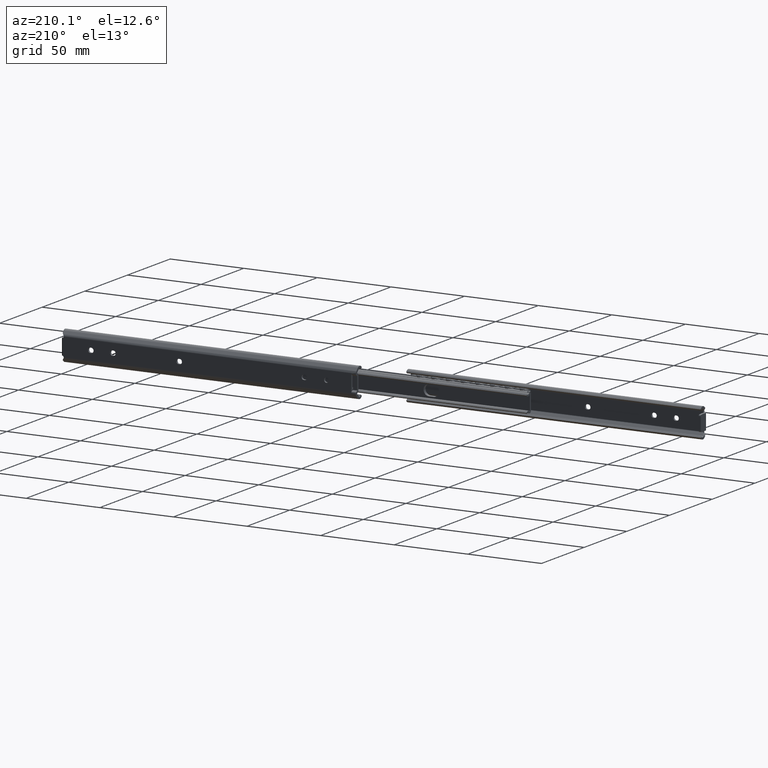
[diagram: clean part render]
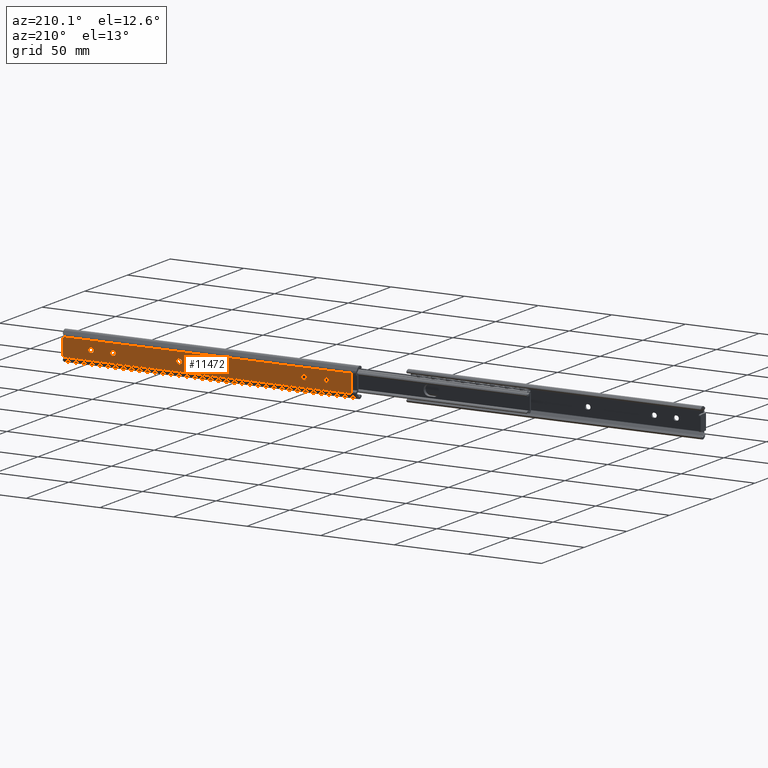
[diagram: same view with one face highlighted and labeled with its STEP entity id]
A machine part, auxiliary view. The second image highlights one B-rep face of the part: STEP entity #11472.
In plain terms, the highlighted face is a freeform B-spline surface patch.
Its self-contained STEP definition (entity closure, byte-faithful):
#8533=CARTESIAN_POINT('',(21.597015677321561,4.857226E-017,-0.097677665764265));
#8534=VERTEX_POINT('',#8533);
#8540=CARTESIAN_POINT('',(20.0,0.0,-1.600000000000000));
#8541=VERTEX_POINT('',#8540);
#8542=CARTESIAN_POINT('',(20.0,0.0,-1.600000000000000));
#8543=CARTESIAN_POINT('',(21.505129702311947,0.0,-1.600000000000001));
#8544=CARTESIAN_POINT('',(21.597015677321558,4.857226E-017,-0.097677665764265));
#8552=(BOUNDED_CURVE()B_SPLINE_CURVE(2,(#8542,#8543,#8544),.UNSPECIFIED.,.F.,.U.)B_SPLINE_CURVE_WITH_KNOTS((3,3),(0.500000000000000,0.739332961699916),.UNSPECIFIED.)CURVE()GEOMETRIC_REPRESENTATION_ITEM()RATIONAL_B_SPLINE_CURVE((1.0,0.719603993918219,0.976072040511481))REPRESENTATION_ITEM(''));
#8553=EDGE_CURVE('',#8541,#8534,#8552,.T.);
#8555=CARTESIAN_POINT('',(18.411184758233269,4.614071E-017,0.188854778943284));
#8556=VERTEX_POINT('',#8555);
#8557=CARTESIAN_POINT('',(18.411184758233265,4.614071E-017,0.188854778943284));
#8558=CARTESIAN_POINT('',(18.399999999999991,0.0,0.094758594972449));
#8559=CARTESIAN_POINT('',(18.399999999999999,0.0,0.0));
#8560=CARTESIAN_POINT('',(18.399999999999991,0.0,-1.600000000000000));
#8561=CARTESIAN_POINT('',(20.0,0.0,-1.600000000000000));
#8569=(BOUNDED_CURVE()B_SPLINE_CURVE(2,(#8557,#8558,#8559,#8560,#8561),.UNSPECIFIED.,.F.,.U.)B_SPLINE_CURVE_WITH_KNOTS((3,2,3),(0.229562472772652,0.250000000000000,0.500000000000000),.UNSPECIFIED.)CURVE()GEOMETRIC_REPRESENTATION_ITEM()RATIONAL_B_SPLINE_CURVE((0.956026752731590,0.976055947463178,1.0,0.707106781186548,1.0))REPRESENTATION_ITEM(''));
#8570=EDGE_CURVE('',#8556,#8541,#8569,.T.);
#8614=CARTESIAN_POINT('',(20.0,0.0,1.600000000000000));
#8615=VERTEX_POINT('',#8614);
#8616=CARTESIAN_POINT('',(20.0,0.0,1.600000000000000));
#8617=CARTESIAN_POINT('',(18.578920764769308,0.0,1.600000000000000));
#8618=CARTESIAN_POINT('',(18.411184758233272,4.614071E-017,0.188854778943284));
#8626=(BOUNDED_CURVE()B_SPLINE_CURVE(2,(#8616,#8617,#8618),.UNSPECIFIED.,.F.,.U.)B_SPLINE_CURVE_WITH_KNOTS((3,3),(0.0,0.229562472772652),.UNSPECIFIED.)CURVE()GEOMETRIC_REPRESENTATION_ITEM()RATIONAL_B_SPLINE_CURVE((1.0,0.731050833723370,0.956026752731590))REPRESENTATION_ITEM(''));
#8627=EDGE_CURVE('',#8615,#8556,#8626,.T.);
#8629=CARTESIAN_POINT('',(21.597015677321558,4.857226E-017,-0.097677665764265));
#8630=CARTESIAN_POINT('',(21.600000000000001,0.0,-0.048884423793270));
#8631=CARTESIAN_POINT('',(21.600000000000001,0.0,0.0));
#8632=CARTESIAN_POINT('',(21.600000000000005,0.0,1.600000000000000));
#8633=CARTESIAN_POINT('',(20.0,0.0,1.600000000000000));
#8641=(BOUNDED_CURVE()B_SPLINE_CURVE(2,(#8629,#8630,#8631,#8632,#8633),.UNSPECIFIED.,.F.,.U.)B_SPLINE_CURVE_WITH_KNOTS((3,2,3),(0.739332961699916,0.750000000000000,1.0),.UNSPECIFIED.)CURVE()GEOMETRIC_REPRESENTATION_ITEM()RATIONAL_B_SPLINE_CURVE((0.976072040511482,0.987502787268329,1.0,0.707106781186548,1.0))REPRESENTATION_ITEM(''));
#8642=EDGE_CURVE('',#8534,#8615,#8641,.T.);
#8677=CARTESIAN_POINT('',(35.299999999999997,8.526513E-014,-1.600000000000080));
#8678=VERTEX_POINT('',#8677);
#8684=CARTESIAN_POINT('',(34.700000000000003,0.0,-1.600000000000000));
#8685=VERTEX_POINT('',#8684);
#8686=CARTESIAN_POINT('',(34.700000000000003,0.0,-1.600000000000000));
#8687=CARTESIAN_POINT('',(35.299999999999997,8.526513E-014,-1.600000000000080));
#8688=QUASI_UNIFORM_CURVE('',1,(#8686,#8687),.UNSPECIFIED.,.F.,.U.);
#8689=EDGE_CURVE('',#8685,#8678,#8688,.T.);
#8735=CARTESIAN_POINT('',(34.700000000000003,0.0,1.600000000000025));
#8736=VERTEX_POINT('',#8735);
#8737=CARTESIAN_POINT('',(34.700000000000003,0.0,1.600000000000000));
#8738=CARTESIAN_POINT('',(33.100000000000009,0.0,1.600000000000000));
#8739=CARTESIAN_POINT('',(33.100000000000001,0.0,0.0));
#8740=CARTESIAN_POINT('',(33.100000000000009,0.0,-1.600000000000000));
#8741=CARTESIAN_POINT('',(34.700000000000003,0.0,-1.600000000000000));
#8749=(BOUNDED_CURVE()B_SPLINE_CURVE(2,(#8737,#8738,#8739,#8740,#8741),.UNSPECIFIED.,.F.,.U.)B_SPLINE_CURVE_WITH_KNOTS((3,2,3),(0.0,0.500000000000000,1.0),.UNSPECIFIED.)CURVE()GEOMETRIC_REPRESENTATION_ITEM()RATIONAL_B_SPLINE_CURVE((1.0,0.707106781186548,1.0,0.707106781186548,1.0))REPRESENTATION_ITEM(''));
#8750=EDGE_CURVE('',#8736,#8685,#8749,.T.);
#8773=CARTESIAN_POINT('',(35.299999999999997,0.0,1.600000000000025));
#8774=VERTEX_POINT('',#8773);
#8775=CARTESIAN_POINT('',(35.299999999999997,0.0,1.600000000000025));
#8776=CARTESIAN_POINT('',(34.700000000000003,0.0,1.600000000000025));
#8777=QUASI_UNIFORM_CURVE('',1,(#8775,#8776),.UNSPECIFIED.,.F.,.U.);
#8778=EDGE_CURVE('',#8774,#8736,#8777,.T.);
#8822=CARTESIAN_POINT('',(35.299999999999997,8.526513E-014,-1.600000000000080));
#8823=CARTESIAN_POINT('',(36.900000000000006,0.0,-1.600000000000000));
#8824=CARTESIAN_POINT('',(36.899999999999999,0.0,0.0));
#8825=CARTESIAN_POINT('',(36.900000000000006,0.0,1.600000000000000));
#8826=CARTESIAN_POINT('',(35.299999999999997,0.0,1.600000000000000));
#8834=(BOUNDED_CURVE()B_SPLINE_CURVE(2,(#8822,#8823,#8824,#8825,#8826),.UNSPECIFIED.,.F.,.U.)B_SPLINE_CURVE_WITH_KNOTS((3,2,3),(0.0,0.500000000000000,1.0),.UNSPECIFIED.)CURVE()GEOMETRIC_REPRESENTATION_ITEM()RATIONAL_B_SPLINE_CURVE((1.0,0.707106781186548,1.0,0.707106781186548,1.0))REPRESENTATION_ITEM(''));
#8835=EDGE_CURVE('',#8678,#8774,#8834,.T.);
#8878=CARTESIAN_POINT('',(120.300000000000000,1.110223E-013,1.600000000000000));
#8879=VERTEX_POINT('',#8878);
#8885=CARTESIAN_POINT('',(120.300000000000000,0.0,-1.600000000000000));
#8886=VERTEX_POINT('',#8885);
#8887=CARTESIAN_POINT('',(120.300000000000000,0.0,-1.600000000000000));
#8888=CARTESIAN_POINT('',(121.900000000000010,0.0,-1.600000000000000));
#8889=CARTESIAN_POINT('',(121.900000000000010,0.0,0.0));
#8890=CARTESIAN_POINT('',(121.900000000000010,0.0,1.600000000000000));
#8891=CARTESIAN_POINT('',(120.300000000000000,0.0,1.600000000000000));
#8899=(BOUNDED_CURVE()B_SPLINE_CURVE(2,(#8887,#8888,#8889,#8890,#8891),.UNSPECIFIED.,.F.,.U.)B_SPLINE_CURVE_WITH_KNOTS((3,2,3),(0.0,0.500000000000000,1.0),.UNSPECIFIED.)CURVE()GEOMETRIC_REPRESENTATION_ITEM()RATIONAL_B_SPLINE_CURVE((1.0,0.707106781186548,1.0,0.707106781186548,1.0))REPRESENTATION_ITEM(''));
#8900=EDGE_CURVE('',#8886,#8879,#8899,.T.);
#8923=CARTESIAN_POINT('',(119.700000000000000,0.0,-1.600000000000000));
#8924=VERTEX_POINT('',#8923);
#8925=CARTESIAN_POINT('',(119.700000000000000,0.0,-1.600000000000000));
#8926=CARTESIAN_POINT('',(120.300000000000000,0.0,-1.600000000000000));
#8927=QUASI_UNIFORM_CURVE('',1,(#8925,#8926),.UNSPECIFIED.,.F.,.U.);
#8928=EDGE_CURVE('',#8924,#8886,#8927,.T.);
#8974=CARTESIAN_POINT('',(119.700000000000000,0.0,1.600000000000000));
#8975=VERTEX_POINT('',#8974);
#8976=CARTESIAN_POINT('',(119.700000000000000,0.0,1.600000000000000));
#8977=CARTESIAN_POINT('',(118.099999999999980,0.0,1.600000000000000));
#8978=CARTESIAN_POINT('',(118.099999999999990,0.0,0.0));
#8979=CARTESIAN_POINT('',(118.099999999999980,0.0,-1.600000000000000));
#8980=CARTESIAN_POINT('',(119.700000000000000,0.0,-1.600000000000000));
#8988=(BOUNDED_CURVE()B_SPLINE_CURVE(2,(#8976,#8977,#8978,#8979,#8980),.UNSPECIFIED.,.F.,.U.)B_SPLINE_CURVE_WITH_KNOTS((3,2,3),(0.0,0.500000000000000,1.0),.UNSPECIFIED.)CURVE()GEOMETRIC_REPRESENTATION_ITEM()RATIONAL_B_SPLINE_CURVE((1.0,0.707106781186548,1.0,0.707106781186548,1.0))REPRESENTATION_ITEM(''));
#8989=EDGE_CURVE('',#8975,#8924,#8988,.T.);
#9010=CARTESIAN_POINT('',(120.300000000000000,1.110223E-013,1.600000000000000));
#9011=CARTESIAN_POINT('',(119.700000000000000,0.0,1.600000000000000));
#9012=QUASI_UNIFORM_CURVE('',1,(#9010,#9011),.UNSPECIFIED.,.F.,.U.);
#9013=EDGE_CURVE('',#8879,#8975,#9012,.T.);
#9033=CARTESIAN_POINT('',(165.300000000000010,8.526513E-014,-1.600000000000000));
#9034=VERTEX_POINT('',#9033);
#9040=CARTESIAN_POINT('',(164.699999999999990,0.0,-1.600000000000000));
#9041=VERTEX_POINT('',#9040);
#9042=CARTESIAN_POINT('',(164.699999999999990,0.0,-1.600000000000000));
#9043=CARTESIAN_POINT('',(165.300000000000010,8.526513E-014,-1.600000000000000));
#9044=QUASI_UNIFORM_CURVE('',1,(#9042,#9043),.UNSPECIFIED.,.F.,.U.);
#9045=EDGE_CURVE('',#9041,#9034,#9044,.T.);
#9091=CARTESIAN_POINT('',(164.699999999999990,0.0,1.599999999999910));
#9092=VERTEX_POINT('',#9091);
#9093=CARTESIAN_POINT('',(164.699999999999990,0.0,1.600000000000000));
#9094=CARTESIAN_POINT('',(163.099999999999990,0.0,1.600000000000000));
#9095=CARTESIAN_POINT('',(163.099999999999990,0.0,0.0));
#9096=CARTESIAN_POINT('',(163.099999999999990,0.0,-1.600000000000000));
#9097=CARTESIAN_POINT('',(164.699999999999990,0.0,-1.600000000000000));
#9105=(BOUNDED_CURVE()B_SPLINE_CURVE(2,(#9093,#9094,#9095,#9096,#9097),.UNSPECIFIED.,.F.,.U.)B_SPLINE_CURVE_WITH_KNOTS((3,2,3),(0.0,0.500000000000000,1.0),.UNSPECIFIED.)CURVE()GEOMETRIC_REPRESENTATION_ITEM()RATIONAL_B_SPLINE_CURVE((1.0,0.707106781186548,1.0,0.707106781186548,1.0))REPRESENTATION_ITEM(''));
#9106=EDGE_CURVE('',#9092,#9041,#9105,.T.);
#9129=CARTESIAN_POINT('',(165.300000000000010,0.0,1.599999999999910));
#9130=VERTEX_POINT('',#9129);
#9131=CARTESIAN_POINT('',(165.300000000000010,0.0,1.599999999999910));
#9132=CARTESIAN_POINT('',(164.699999999999990,0.0,1.599999999999910));
#9133=QUASI_UNIFORM_CURVE('',1,(#9131,#9132),.UNSPECIFIED.,.F.,.U.);
#9134=EDGE_CURVE('',#9130,#9092,#9133,.T.);
#9178=CARTESIAN_POINT('',(165.300000000000010,0.0,-1.600000000000000));
#9179=CARTESIAN_POINT('',(166.900000000000010,0.0,-1.600000000000000));
#9180=CARTESIAN_POINT('',(166.900000000000010,0.0,0.0));
#9181=CARTESIAN_POINT('',(166.900000000000010,0.0,1.600000000000000));
#9182=CARTESIAN_POINT('',(165.300000000000010,0.0,1.600000000000000));
#9190=(BOUNDED_CURVE()B_SPLINE_CURVE(2,(#9178,#9179,#9180,#9181,#9182),.UNSPECIFIED.,.F.,.U.)B_SPLINE_CURVE_WITH_KNOTS((3,2,3),(0.0,0.500000000000000,1.0),.UNSPECIFIED.)CURVE()GEOMETRIC_REPRESENTATION_ITEM()RATIONAL_B_SPLINE_CURVE((1.0,0.707106781186548,1.0,0.707106781186548,1.0))REPRESENTATION_ITEM(''));
#9191=EDGE_CURVE('',#9034,#9130,#9190,.T.);
#9211=CARTESIAN_POINT('',(180.300000000000010,8.526513E-014,-1.600000000000000));
#9212=VERTEX_POINT('',#9211);
#9218=CARTESIAN_POINT('',(179.699999999999990,0.0,-1.600000000000000));
#9219=VERTEX_POINT('',#9218);
#9220=CARTESIAN_POINT('',(179.699999999999990,0.0,-1.600000000000000));
#9221=CARTESIAN_POINT('',(180.300000000000010,8.526513E-014,-1.600000000000000));
#9222=QUASI_UNIFORM_CURVE('',1,(#9220,#9221),.UNSPECIFIED.,.F.,.U.);
#9223=EDGE_CURVE('',#9219,#9212,#9222,.T.);
#9269=CARTESIAN_POINT('',(179.699999999999990,0.0,1.599999999999910));
#9270=VERTEX_POINT('',#9269);
#9271=CARTESIAN_POINT('',(179.699999999999990,0.0,1.600000000000000));
#9272=CARTESIAN_POINT('',(178.099999999999970,0.0,1.600000000000000));
#9273=CARTESIAN_POINT('',(178.099999999999990,0.0,0.0));
#9274=CARTESIAN_POINT('',(178.099999999999970,0.0,-1.600000000000000));
#9275=CARTESIAN_POINT('',(179.699999999999990,0.0,-1.600000000000000));
#9283=(BOUNDED_CURVE()B_SPLINE_CURVE(2,(#9271,#9272,#9273,#9274,#9275),.UNSPECIFIED.,.F.,.U.)B_SPLINE_CURVE_WITH_KNOTS((3,2,3),(0.0,0.500000000000000,1.0),.UNSPECIFIED.)CURVE()GEOMETRIC_REPRESENTATION_ITEM()RATIONAL_B_SPLINE_CURVE((1.0,0.707106781186548,1.0,0.707106781186548,1.0))REPRESENTATION_ITEM(''));
#9284=EDGE_CURVE('',#9270,#9219,#9283,.T.);
#9307=CARTESIAN_POINT('',(180.300000000000010,0.0,1.599999999999910));
#9308=VERTEX_POINT('',#9307);
#9309=CARTESIAN_POINT('',(180.300000000000010,0.0,1.599999999999910));
#9310=CARTESIAN_POINT('',(179.699999999999990,0.0,1.599999999999910));
#9311=QUASI_UNIFORM_CURVE('',1,(#9309,#9310),.UNSPECIFIED.,.F.,.U.);
#9312=EDGE_CURVE('',#9308,#9270,#9311,.T.);
#9356=CARTESIAN_POINT('',(180.300000000000010,0.0,-1.600000000000000));
#9357=CARTESIAN_POINT('',(181.899999999999980,0.0,-1.600000000000000));
#9358=CARTESIAN_POINT('',(181.900000000000010,0.0,0.0));
#9359=CARTESIAN_POINT('',(181.899999999999980,0.0,1.600000000000000));
#9360=CARTESIAN_POINT('',(180.300000000000010,0.0,1.600000000000000));
#9368=(BOUNDED_CURVE()B_SPLINE_CURVE(2,(#9356,#9357,#9358,#9359,#9360),.UNSPECIFIED.,.F.,.U.)B_SPLINE_CURVE_WITH_KNOTS((3,2,3),(0.0,0.500000000000000,1.0),.UNSPECIFIED.)CURVE()GEOMETRIC_REPRESENTATION_ITEM()RATIONAL_B_SPLINE_CURVE((1.0,0.707106781186548,1.0,0.707106781186548,1.0))REPRESENTATION_ITEM(''));
#9369=EDGE_CURVE('',#9212,#9308,#9368,.T.);
#9428=CARTESIAN_POINT('',(199.0,0.0,-5.383484861008840));
#9429=VERTEX_POINT('',#9428);
#9441=CARTESIAN_POINT('',(199.0,0.0,5.383484861008751));
#9442=VERTEX_POINT('',#9441);
#9443=CARTESIAN_POINT('',(199.0,0.0,5.383484861008751));
#9444=CARTESIAN_POINT('',(199.0,0.0,-5.383484861008840));
#9445=QUASI_UNIFORM_CURVE('',1,(#9443,#9444),.UNSPECIFIED.,.F.,.U.);
#9446=EDGE_CURVE('',#9442,#9429,#9445,.T.);
#9852=CARTESIAN_POINT('',(198.424053688014000,0.0,6.081989000000000));
#9853=VERTEX_POINT('',#9852);
#9854=CARTESIAN_POINT('',(198.424053688014000,0.0,6.081989000000002));
#9855=CARTESIAN_POINT('',(198.534727763389700,0.0,5.586546312725764));
#9856=CARTESIAN_POINT('',(199.0,0.0,5.383484861008813));
#9864=(BOUNDED_CURVE()B_SPLINE_CURVE(2,(#9854,#9855,#9856),.UNSPECIFIED.,.F.,.U.)CURVE()GEOMETRIC_REPRESENTATION_ITEM()QUASI_UNIFORM_CURVE()RATIONAL_B_SPLINE_CURVE((1.0,0.891680690258836,1.0))REPRESENTATION_ITEM(''));
#9865=EDGE_CURVE('',#9853,#9442,#9864,.T.);
#10066=CARTESIAN_POINT('',(198.424053688014000,0.0,-6.081989000000000));
#10067=VERTEX_POINT('',#10066);
#10068=CARTESIAN_POINT('',(199.0,0.0,-5.383484861008911));
#10069=CARTESIAN_POINT('',(198.534727763389780,0.0,-5.586546312725836));
#10070=CARTESIAN_POINT('',(198.424053688014110,0.0,-6.081989000000006));
#10078=(BOUNDED_CURVE()B_SPLINE_CURVE(2,(#10068,#10069,#10070),.UNSPECIFIED.,.F.,.U.)CURVE()GEOMETRIC_REPRESENTATION_ITEM()QUASI_UNIFORM_CURVE()RATIONAL_B_SPLINE_CURVE((1.0,0.891680690258857,1.0))REPRESENTATION_ITEM(''));
#10079=EDGE_CURVE('',#9429,#10067,#10078,.T.);
#11391=CARTESIAN_POINT('',(3.100000000000000,7.958044E-014,-6.081989000000000));
#11392=VERTEX_POINT('',#11391);
#11393=CARTESIAN_POINT('',(198.424053688014000,0.0,-6.081989000000000));
#11394=CARTESIAN_POINT('',(3.100000000000000,7.958044E-014,-6.081989000000000));
#11395=QUASI_UNIFORM_CURVE('',1,(#11393,#11394),.UNSPECIFIED.,.F.,.U.);
#11396=EDGE_CURVE('',#10067,#11392,#11395,.T.);
#11419=CARTESIAN_POINT('',(-6.685204620307786,8.526513E-014,-6.689579519878855));
#11420=CARTESIAN_POINT('',(-6.685204620307786,8.526513E-014,6.689579084861101));
#11421=CARTESIAN_POINT('',(208.785209874755310,8.526513E-014,-6.689579519878854));
#11422=CARTESIAN_POINT('',(208.785209874755310,8.526513E-014,6.689579084861101));
#11423=B_SPLINE_SURFACE_WITH_KNOTS('',1,1,((#11419,#11421),(#11420,#11422)),.UNSPECIFIED.,.F.,.F.,.U.,(2,2),(2,2),(0.0,13.379158604739960),(0.0,215.470414495063100),.UNSPECIFIED.);
#11424=ORIENTED_EDGE('',*,*,#9865,.T.);
#11425=ORIENTED_EDGE('',*,*,#9446,.T.);
#11426=ORIENTED_EDGE('',*,*,#10079,.T.);
#11427=ORIENTED_EDGE('',*,*,#11396,.T.);
#11428=CARTESIAN_POINT('',(3.100000000000000,-9.063930E-014,6.081989000000000));
#11429=VERTEX_POINT('',#11428);
#11430=CARTESIAN_POINT('',(3.100000000000000,7.958044E-014,-6.081989000000000));
#11431=CARTESIAN_POINT('',(3.100000000000000,-9.063930E-014,6.081989000000000));
#11432=QUASI_UNIFORM_CURVE('',1,(#11430,#11431),.UNSPECIFIED.,.F.,.U.);
#11433=EDGE_CURVE('',#11392,#11429,#11432,.T.);
#11434=ORIENTED_EDGE('',*,*,#11433,.T.);
#11435=CARTESIAN_POINT('',(198.424053688014000,0.0,6.081989000000000));
#11436=CARTESIAN_POINT('',(3.100000000000000,-9.063930E-014,6.081989000000000));
#11437=QUASI_UNIFORM_CURVE('',1,(#11435,#11436),.UNSPECIFIED.,.F.,.U.);
#11438=EDGE_CURVE('',#9853,#11429,#11437,.T.);
#11439=ORIENTED_EDGE('',*,*,#11438,.F.);
#11440=EDGE_LOOP('',(#11424,#11425,#11426,#11427,#11434,#11439));
#11441=FACE_OUTER_BOUND('',#11440,.T.);
#11442=ORIENTED_EDGE('',*,*,#8835,.T.);
#11443=ORIENTED_EDGE('',*,*,#8778,.T.);
#11444=ORIENTED_EDGE('',*,*,#8750,.T.);
#11445=ORIENTED_EDGE('',*,*,#8689,.T.);
#11446=EDGE_LOOP('',(#11442,#11443,#11444,#11445));
#11447=FACE_BOUND('',#11446,.T.);
#11448=ORIENTED_EDGE('',*,*,#9013,.T.);
#11449=ORIENTED_EDGE('',*,*,#8989,.T.);
#11450=ORIENTED_EDGE('',*,*,#8928,.T.);
#11451=ORIENTED_EDGE('',*,*,#8900,.T.);
#11452=EDGE_LOOP('',(#11448,#11449,#11450,#11451));
#11453=FACE_BOUND('',#11452,.T.);
#11454=ORIENTED_EDGE('',*,*,#9191,.T.);
#11455=ORIENTED_EDGE('',*,*,#9134,.T.);
#11456=ORIENTED_EDGE('',*,*,#9106,.T.);
#11457=ORIENTED_EDGE('',*,*,#9045,.T.);
#11458=EDGE_LOOP('',(#11454,#11455,#11456,#11457));
#11459=FACE_BOUND('',#11458,.T.);
#11460=ORIENTED_EDGE('',*,*,#9369,.T.);
#11461=ORIENTED_EDGE('',*,*,#9312,.T.);
#11462=ORIENTED_EDGE('',*,*,#9284,.T.);
#11463=ORIENTED_EDGE('',*,*,#9223,.T.);
#11464=EDGE_LOOP('',(#11460,#11461,#11462,#11463));
#11465=FACE_BOUND('',#11464,.T.);
#11466=ORIENTED_EDGE('',*,*,#8553,.T.);
#11467=ORIENTED_EDGE('',*,*,#8642,.T.);
#11468=ORIENTED_EDGE('',*,*,#8627,.T.);
#11469=ORIENTED_EDGE('',*,*,#8570,.T.);
#11470=EDGE_LOOP('',(#11466,#11467,#11468,#11469));
#11471=FACE_BOUND('',#11470,.T.);
#11472=ADVANCED_FACE('',(#11441,#11447,#11453,#11459,#11465,#11471),#11423,.T.);